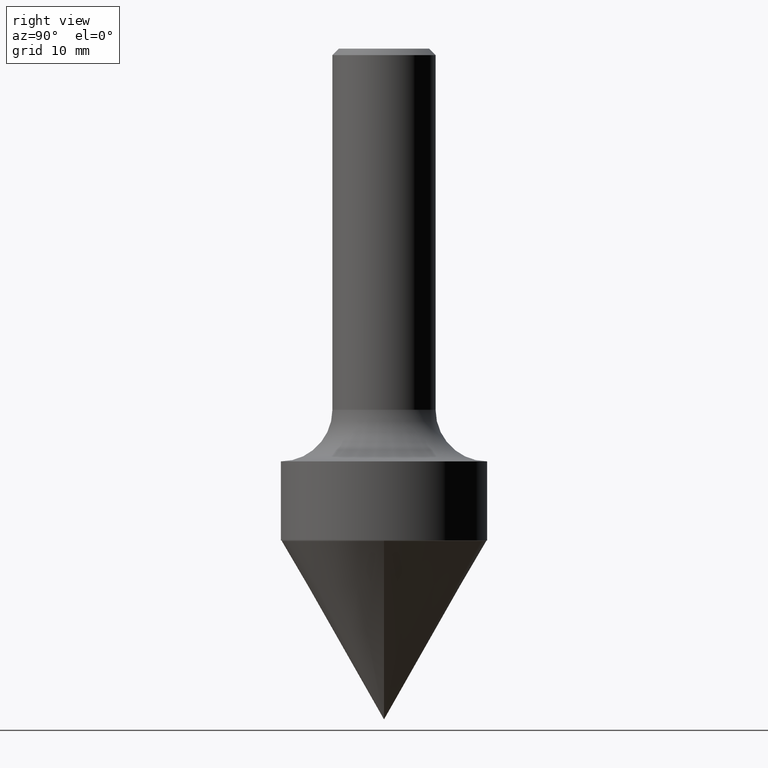
[diagram: clean part render]
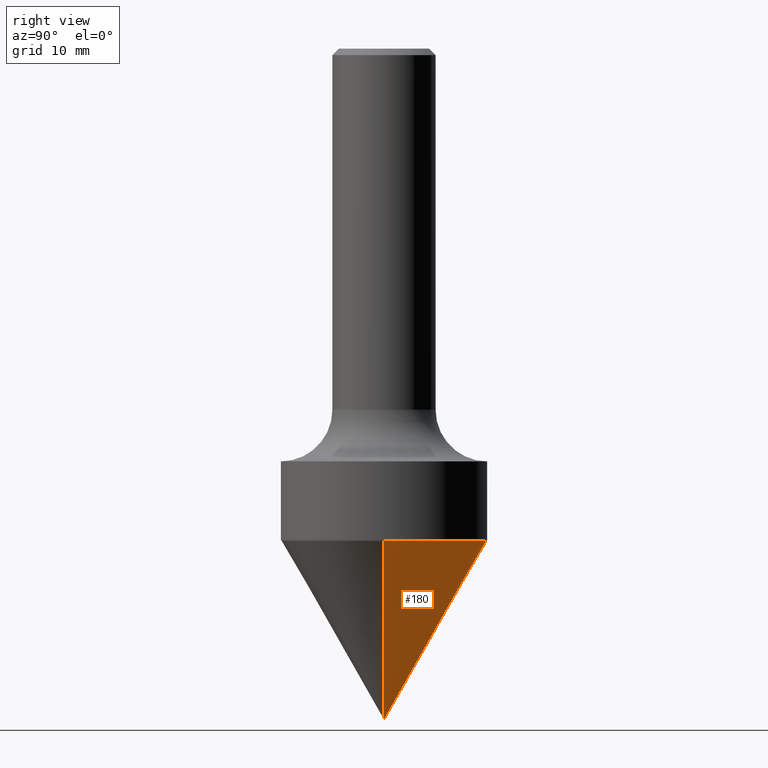
[diagram: same view with one face highlighted and labeled with its STEP entity id]
A machine part, right view. The second image highlights one B-rep face of the part: STEP entity #180.
In plain terms, the highlighted conical surface has half-angle 30 deg.
Its self-contained STEP definition (entity closure, byte-faithful):
#26 = LINE ( 'NONE', #362, #484 ) ;
#33 = CARTESIAN_POINT ( 'NONE',  ( 5.829935509782950990E-29, -8.323602814962740609E-15, -2.383974596215557185 ) ) ;
#59 = DIRECTION ( 'NONE',  ( -0.4999999999999976685, 6.576425215077956346E-15, 0.8660254037844400399 ) ) ;
#68 = DIRECTION ( 'NONE',  ( 1.000000000000000000, -6.982962677686268288E-15, 0.000000000000000000 ) ) ;
#76 = CONICAL_SURFACE ( 'NONE', #312, 0.4999999999999996114, 0.5235987755982961511 ) ;
#94 = ORIENTED_EDGE ( 'NONE', *, *, #176, .F. ) ;
#96 = DIRECTION ( 'NONE',  ( -2.445468806185136597E-29, 3.491481338843145583E-15, 1.000000000000000000 ) ) ;
#100 = CARTESIAN_POINT ( 'NONE',  ( -0.4999999999999996114, -4.832121476119610410E-15, -2.383974596215557185 ) ) ;
#124 = ORIENTED_EDGE ( 'NONE', *, *, #399, .F. ) ;
#176 = EDGE_CURVE ( 'NONE', #246, #226, #401, .T. ) ;
#180 = ADVANCED_FACE ( 'NONE', ( #222 ), #76, .T. ) ;
#188 = VECTOR ( 'NONE', #445, 39.37007874015748143 ) ;
#206 = EDGE_CURVE ( 'NONE', #239, #226, #26, .T. ) ;
#208 = ORIENTED_EDGE ( 'NONE', *, *, #206, .T. ) ;
#211 = CARTESIAN_POINT ( 'NONE',  ( 0.4999999999999996114, -1.175385181384850324E-14, -2.383974596215557185 ) ) ;
#222 = FACE_OUTER_BOUND ( 'NONE', #341, .T. ) ;
#226 = VERTEX_POINT ( 'NONE', #100 ) ;
#239 = VERTEX_POINT ( 'NONE', #433 ) ;
#246 = VERTEX_POINT ( 'NONE', #211 ) ;
#312 = AXIS2_PLACEMENT_3D ( 'NONE', #33, #96, #430 ) ;
#336 = CARTESIAN_POINT ( 'NONE',  ( 0.4999999999999996114, -1.181508415380587239E-14, -2.383974596215557185 ) ) ;
#341 = EDGE_LOOP ( 'NONE', ( #124, #208, #94 ) ) ;
#362 = CARTESIAN_POINT ( 'NONE',  ( -0.4999999999999996114, -4.770889136162242836E-15, -2.383974596215557185 ) ) ;
#364 = AXIS2_PLACEMENT_3D ( 'NONE', #442, #408, #68 ) ;
#399 = EDGE_CURVE ( 'NONE', #239, #246, #454, .T. ) ;
#401 = CIRCLE ( 'NONE', #364, 0.4999999999999996114 ) ;
#408 = DIRECTION ( 'NONE',  ( -2.445468806185136597E-29, 3.491481338843145583E-15, 1.000000000000000000 ) ) ;
#430 = DIRECTION ( 'NONE',  ( 1.000000000000000000, -6.982962677686268288E-15, 0.000000000000000000 ) ) ;
#433 = CARTESIAN_POINT ( 'NONE',  ( 7.791418878673797887E-29, -1.157122324012419561E-14, -3.250000000000000000 ) ) ;
#442 = CARTESIAN_POINT ( 'NONE',  ( 5.829935509782950990E-29, -8.323602814962740609E-15, -2.383974596215557185 ) ) ;
#445 = DIRECTION ( 'NONE',  ( 0.4999999999999976685, -4.677698025656444117E-16, 0.8660254037844400399 ) ) ;
#454 = LINE ( 'NONE', #336, #188 ) ;
#484 = VECTOR ( 'NONE', #59, 39.37007874015748143 ) ;